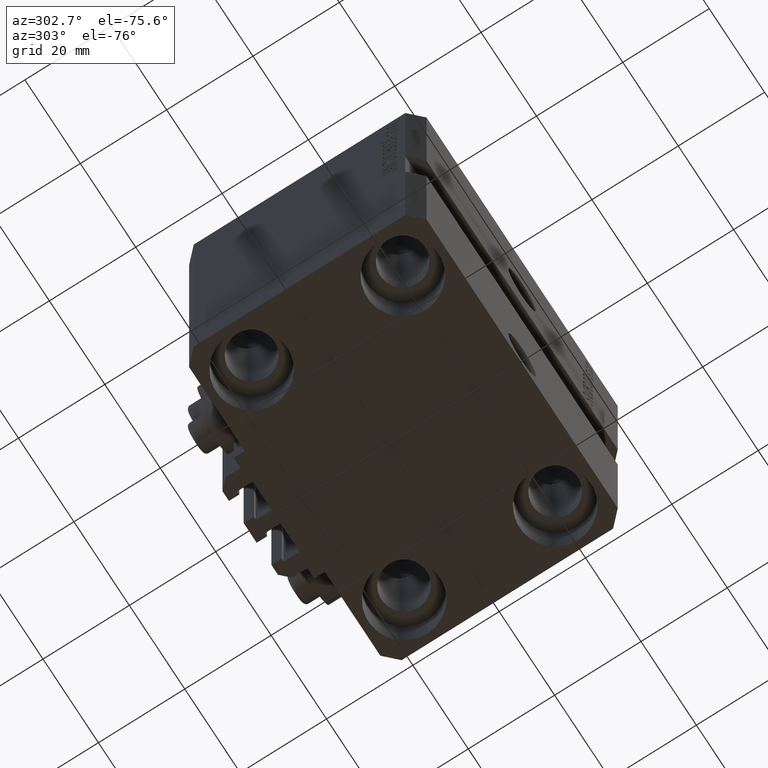
[diagram: clean part render]
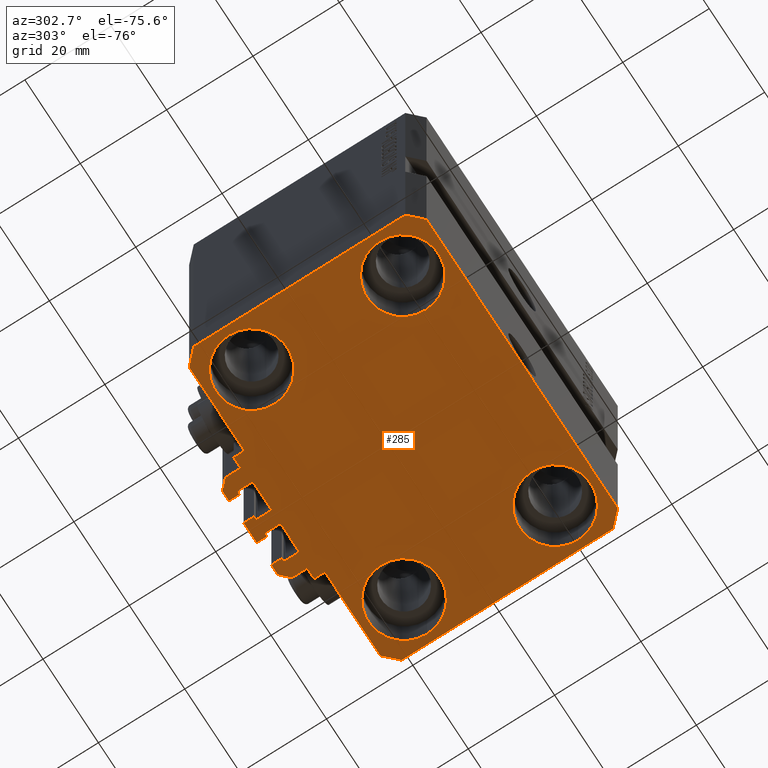
[diagram: same view with one face highlighted and labeled with its STEP entity id]
A machine part, auxiliary view. The second image highlights one B-rep face of the part: STEP entity #285.
In plain terms, the highlighted planar face has unit normal (0, 0, 1).
Its self-contained STEP definition (entity closure, byte-faithful):
#159 = VECTOR ( 'NONE', #4921, 1000.000000000000000 ) ;
#175 = DIRECTION ( 'NONE',  ( -1.000000000000000000, 0.000000000000000000, 0.000000000000000000 ) ) ;
#285 = ADVANCED_FACE ( 'NONE', ( #12888, #2219, #27323, #16678, #45538 ), #13129, .F. ) ;
#333 = CARTESIAN_POINT ( 'NONE',  ( -1.800000000000000933, 29.69999999999999929, -80.00000000000000000 ) ) ;
#613 = VERTEX_POINT ( 'NONE', #34368 ) ;
#671 = CARTESIAN_POINT ( 'NONE',  ( 1.800000000000000933, 33.10000000000001563, -80.00000000000000000 ) ) ;
#764 = CIRCLE ( 'NONE', #27239, 0.1999999999999987899 ) ;
#848 = VERTEX_POINT ( 'NONE', #32916 ) ;
#877 = AXIS2_PLACEMENT_3D ( 'NONE', #5553, #21393, #18312 ) ;
#879 = LINE ( 'NONE', #33315, #42372 ) ;
#890 = LINE ( 'NONE', #15346, #2804 ) ;
#893 = EDGE_CURVE ( 'NONE', #21298, #22198, #42517, .T. ) ;
#967 = ORIENTED_EDGE ( 'NONE', *, *, #17798, .T. ) ;
#998 = CARTESIAN_POINT ( 'NONE',  ( -34.49999999999998579, -27.49999999999999645, -80.00000000000000000 ) ) ;
#1208 = EDGE_CURVE ( 'NONE', #18368, #43558, #6184, .T. ) ;
#1325 = AXIS2_PLACEMENT_3D ( 'NONE', #10577, #39214, #14615 ) ;
#1399 = CARTESIAN_POINT ( 'NONE',  ( -12.20000000000000107, 29.99999999999998934, -80.00000000000000000 ) ) ;
#1439 = VERTEX_POINT ( 'NONE', #6423 ) ;
#1496 = CARTESIAN_POINT ( 'NONE',  ( -8.199999999999997513, 33.09999999999998721, -80.00000000000000000 ) ) ;
#1523 = DIRECTION ( 'NONE',  ( 1.000000000000000000, 0.000000000000000000, 0.000000000000000000 ) ) ;
#1546 = AXIS2_PLACEMENT_3D ( 'NONE', #2447, #31344, #31576 ) ;
#1581 = EDGE_LOOP ( 'NONE', ( #29539, #3141, #26814, #16639, #6057, #3027, #19251, #30763, #37242, #46337, #42886, #16101, #41898, #43734, #43979, #19558, #32385, #43586, #16092, #6213, #33461, #42872, #10555, #967, #9056, #21238, #10751, #8376, #39261, #31769, #30840, #27358, #9219, #22347, #37714, #32306, #44666, #36850, #8428, #10570, #27372, #43982, #24781, #5604 ) ) ;
#1786 = CARTESIAN_POINT ( 'NONE',  ( -27.50000000000000355, 17.50000000000000000, -80.00000000000000000 ) ) ;
#1861 = CARTESIAN_POINT ( 'NONE',  ( 2.349999999999999645, 33.10000000000000853, -80.00000000000000000 ) ) ;
#1917 = VECTOR ( 'NONE', #4199, 1000.000000000000000 ) ;
#1957 = VERTEX_POINT ( 'NONE', #22678 ) ;
#2210 = DIRECTION ( 'NONE',  ( 1.000000000000000000, 0.000000000000000000, 0.000000000000000000 ) ) ;
#2219 = FACE_BOUND ( 'NONE', #28346, .T. ) ;
#2248 = EDGE_CURVE ( 'NONE', #35632, #38033, #8217, .T. ) ;
#2403 = CARTESIAN_POINT ( 'NONE',  ( -1.800000000000000933, 29.50000000000000355, -80.00000000000000000 ) ) ;
#2447 = CARTESIAN_POINT ( 'NONE',  ( 8.200000000000001066, 32.90000000000001990, -80.00000000000000000 ) ) ;
#2515 = AXIS2_PLACEMENT_3D ( 'NONE', #29632, #11654, #18974 ) ;
#2565 = LINE ( 'NONE', #9911, #23383 ) ;
#2775 = CARTESIAN_POINT ( 'NONE',  ( 8.199999999999999289, 29.70000000000000284, -80.00000000000000000 ) ) ;
#2804 = VECTOR ( 'NONE', #22440, 1000.000000000000227 ) ;
#2832 = EDGE_CURVE ( 'NONE', #30185, #6379, #4540, .T. ) ;
#2842 = DIRECTION ( 'NONE',  ( -0.7071067811865356934, 0.7071067811865594521, 0.000000000000000000 ) ) ;
#2972 = EDGE_CURVE ( 'NONE', #613, #38033, #16623, .T. ) ;
#3027 = ORIENTED_EDGE ( 'NONE', *, *, #44273, .F. ) ;
#3141 = ORIENTED_EDGE ( 'NONE', *, *, #28836, .F. ) ;
#3343 = LINE ( 'NONE', #17794, #23096 ) ;
#3621 = DIRECTION ( 'NONE',  ( 1.000000000000000000, 0.000000000000000000, -0.000000000000000000 ) ) ;
#3622 = CARTESIAN_POINT ( 'NONE',  ( 8.399999999999998579, 32.90000000000001990, -80.00000000000000000 ) ) ;
#3760 = VERTEX_POINT ( 'NONE', #2403 ) ;
#3763 = EDGE_CURVE ( 'NONE', #43953, #28102, #44786, .T. ) ;
#4073 = CIRCLE ( 'NONE', #19230, 8.250000000000000000 ) ;
#4199 = DIRECTION ( 'NONE',  ( -1.000000000000000000, -1.084202172485504828E-15, 0.000000000000000000 ) ) ;
#4540 = LINE ( 'NONE', #25630, #20473 ) ;
#4545 = VECTOR ( 'NONE', #15849, 1000.000000000000000 ) ;
#4699 = CARTESIAN_POINT ( 'NONE',  ( 12.00000000000000178, 30.20000000000002061, -80.00000000000000000 ) ) ;
#4778 = EDGE_CURVE ( 'NONE', #11680, #29954, #18285, .T. ) ;
#4844 = CARTESIAN_POINT ( 'NONE',  ( -27.50000000000000355, -17.50000000000000000, -80.00000000000000000 ) ) ;
#4921 = DIRECTION ( 'NONE',  ( -6.776263578034378061E-17, -1.000000000000000000, 0.000000000000000000 ) ) ;
#4971 = CARTESIAN_POINT ( 'NONE',  ( -34.49999999999998579, -27.49999999999999645, -80.00000000000000000 ) ) ;
#4983 = VERTEX_POINT ( 'NONE', #3622 ) ;
#5553 = CARTESIAN_POINT ( 'NONE',  ( 27.50000000000000355, -17.50000000000000000, -80.00000000000000000 ) ) ;
#5592 = AXIS2_PLACEMENT_3D ( 'NONE', #20206, #34650, #2210 ) ;
#5594 = CIRCLE ( 'NONE', #22232, 8.250000000000000000 ) ;
#5604 = ORIENTED_EDGE ( 'NONE', *, *, #3763, .F. ) ;
#5627 = AXIS2_PLACEMENT_3D ( 'NONE', #1786, #11765, #37534 ) ;
#6057 = ORIENTED_EDGE ( 'NONE', *, *, #893, .F. ) ;
#6184 = CIRCLE ( 'NONE', #877, 8.250000000000000000 ) ;
#6213 = ORIENTED_EDGE ( 'NONE', *, *, #36257, .T. ) ;
#6379 = VERTEX_POINT ( 'NONE', #23433 ) ;
#6423 = CARTESIAN_POINT ( 'NONE',  ( -7.650000000000000355, 35.50000000000000000, -80.00000000000000000 ) ) ;
#6467 = DIRECTION ( 'NONE',  ( 0.000000000000000000, 0.000000000000000000, 1.000000000000000000 ) ) ;
#6543 = EDGE_CURVE ( 'NONE', #21051, #26344, #40676, .T. ) ;
#6568 = VERTEX_POINT ( 'NONE', #37349 ) ;
#6625 = LINE ( 'NONE', #24627, #10666 ) ;
#6709 = CARTESIAN_POINT ( 'NONE',  ( 2.349999999999999645, 35.50000000000001421, -80.00000000000000000 ) ) ;
#6906 = VERTEX_POINT ( 'NONE', #37527 ) ;
#7006 = LINE ( 'NONE', #11050, #25034 ) ;
#7279 = LINE ( 'NONE', #36374, #8913 ) ;
#7405 = CARTESIAN_POINT ( 'NONE',  ( 1.800000000000000933, 29.69999999999999929, -80.00000000000000000 ) ) ;
#7452 = EDGE_CURVE ( 'NONE', #613, #11613, #34974, .T. ) ;
#7677 = CARTESIAN_POINT ( 'NONE',  ( 34.50000000000056843, 27.50000000000000000, -80.00000000000000000 ) ) ;
#7702 = EDGE_CURVE ( 'NONE', #29954, #11680, #13819, .T. ) ;
#7708 = LINE ( 'NONE', #14836, #15679 ) ;
#7950 = DIRECTION ( 'NONE',  ( -0.000000000000000000, -0.000000000000000000, 1.000000000000000000 ) ) ;
#7982 = AXIS2_PLACEMENT_3D ( 'NONE', #22411, #33297, #36842 ) ;
#8217 = LINE ( 'NONE', #29530, #31899 ) ;
#8376 = ORIENTED_EDGE ( 'NONE', *, *, #2248, .F. ) ;
#8428 = ORIENTED_EDGE ( 'NONE', *, *, #39424, .F. ) ;
#8448 = CARTESIAN_POINT ( 'NONE',  ( -1.599999999999997868, 32.90000000000001279, -80.00000000000000000 ) ) ;
#8628 = DIRECTION ( 'NONE',  ( -0.000000000000000000, -0.000000000000000000, 1.000000000000000000 ) ) ;
#8806 = CARTESIAN_POINT ( 'NONE',  ( 14.49999999999999645, 27.50000000000000355, -80.00000000000000000 ) ) ;
#8913 = VECTOR ( 'NONE', #36608, 1000.000000000000000 ) ;
#8953 = LINE ( 'NONE', #15840, #46733 ) ;
#9056 = ORIENTED_EDGE ( 'NONE', *, *, #43467, .F. ) ;
#9061 = EDGE_CURVE ( 'NONE', #18115, #43953, #11211, .T. ) ;
#9219 = ORIENTED_EDGE ( 'NONE', *, *, #13356, .F. ) ;
#9511 = DIRECTION ( 'NONE',  ( 1.000000000000000000, 0.000000000000000000, 0.000000000000000000 ) ) ;
#9765 = DIRECTION ( 'NONE',  ( 0.7071067811865483499, -0.7071067811865466846, 0.000000000000000000 ) ) ;
#9911 = CARTESIAN_POINT ( 'NONE',  ( -8.399999999999996803, 29.69999999999999929, -80.00000000000000000 ) ) ;
#10093 = DIRECTION ( 'NONE',  ( 1.000000000000000000, 0.000000000000000000, 0.000000000000000000 ) ) ;
#10134 = EDGE_CURVE ( 'NONE', #13635, #1957, #4073, .T. ) ;
#10290 = DIRECTION ( 'NONE',  ( 0.000000000000000000, 0.000000000000000000, 1.000000000000000000 ) ) ;
#10527 = DIRECTION ( 'NONE',  ( -0.7071067811865474617, 0.7071067811865474617, 0.000000000000000000 ) ) ;
#10555 = ORIENTED_EDGE ( 'NONE', *, *, #6543, .F. ) ;
#10570 = ORIENTED_EDGE ( 'NONE', *, *, #45362, .F. ) ;
#10577 = CARTESIAN_POINT ( 'NONE',  ( -27.50000000000000355, -17.50000000000000000, -80.00000000000000000 ) ) ;
#10649 = CARTESIAN_POINT ( 'NONE',  ( 14.49999999999999645, 30.00000000000002487, -80.00000000000000000 ) ) ;
#10650 = EDGE_CURVE ( 'NONE', #45320, #39064, #5594, .T. ) ;
#10666 = VECTOR ( 'NONE', #2842, 1000.000000000000114 ) ;
#10751 = ORIENTED_EDGE ( 'NONE', *, *, #2972, .T. ) ;
#10926 = VERTEX_POINT ( 'NONE', #36755 ) ;
#11008 = CARTESIAN_POINT ( 'NONE',  ( 37.50000000000051870, 24.49999999999995381, -80.00000000000000000 ) ) ;
#11047 = VERTEX_POINT ( 'NONE', #13314 ) ;
#11050 = CARTESIAN_POINT ( 'NONE',  ( -12.00000000000000000, 33.49999999999998579, -80.00000000000000000 ) ) ;
#11070 = DIRECTION ( 'NONE',  ( 1.000000000000000000, 0.000000000000000000, 0.000000000000000000 ) ) ;
#11108 = LINE ( 'NONE', #25767, #31428 ) ;
#11151 = VERTEX_POINT ( 'NONE', #36698 ) ;
#11211 = LINE ( 'NONE', #25640, #19196 ) ;
#11262 = VECTOR ( 'NONE', #43138, 1000.000000000000000 ) ;
#11326 = VECTOR ( 'NONE', #29414, 1000.000000000000000 ) ;
#11356 = VECTOR ( 'NONE', #18963, 1000.000000000000000 ) ;
#11613 = VERTEX_POINT ( 'NONE', #15586 ) ;
#11654 = DIRECTION ( 'NONE',  ( 0.000000000000000000, 0.000000000000000000, 1.000000000000000000 ) ) ;
#11680 = VERTEX_POINT ( 'NONE', #42293 ) ;
#11765 = DIRECTION ( 'NONE',  ( -0.000000000000000000, -0.000000000000000000, 1.000000000000000000 ) ) ;
#11935 = CARTESIAN_POINT ( 'NONE',  ( -34.49999999999999289, 27.50000000000000000, -80.00000000000000000 ) ) ;
#12017 = LINE ( 'NONE', #40887, #1917 ) ;
#12037 = LINE ( 'NONE', #12505, #23580 ) ;
#12076 = VERTEX_POINT ( 'NONE', #40504 ) ;
#12505 = CARTESIAN_POINT ( 'NONE',  ( 37.49999999999999289, -24.50000000000000000, -80.00000000000000000 ) ) ;
#12537 = CARTESIAN_POINT ( 'NONE',  ( 19.25000000000000000, 17.50000000000001066, -80.00000000000000000 ) ) ;
#12824 = CIRCLE ( 'NONE', #44570, 0.2000000000000016209 ) ;
#12888 = FACE_BOUND ( 'NONE', #20935, .T. ) ;
#12964 = VERTEX_POINT ( 'NONE', #11935 ) ;
#12991 = DIRECTION ( 'NONE',  ( -1.000000000000000000, 0.000000000000000000, 0.000000000000000000 ) ) ;
#13129 = PLANE ( 'NONE',  #24266 ) ;
#13314 = CARTESIAN_POINT ( 'NONE',  ( -14.50000000000000000, 29.99999999999999289, -80.00000000000000000 ) ) ;
#13356 = EDGE_CURVE ( 'NONE', #11151, #6906, #12017, .T. ) ;
#13509 = DIRECTION ( 'NONE',  ( 1.000000000000000000, 0.000000000000000000, 0.000000000000000000 ) ) ;
#13635 = VERTEX_POINT ( 'NONE', #15514 ) ;
#13819 = CIRCLE ( 'NONE', #15348, 8.249999999999992895 ) ;
#13874 = LINE ( 'NONE', #28293, #15545 ) ;
#13885 = VERTEX_POINT ( 'NONE', #34546 ) ;
#14075 = VERTEX_POINT ( 'NONE', #32156 ) ;
#14151 = EDGE_CURVE ( 'NONE', #14075, #40453, #890, .T. ) ;
#14170 = DIRECTION ( 'NONE',  ( -1.084202172485505223E-15, 1.000000000000000000, 0.000000000000000000 ) ) ;
#14251 = DIRECTION ( 'NONE',  ( 1.000000000000000000, 1.261617073437673039E-14, 0.000000000000000000 ) ) ;
#14338 = LINE ( 'NONE', #28765, #35199 ) ;
#14516 = VECTOR ( 'NONE', #10093, 1000.000000000000000 ) ;
#14615 = DIRECTION ( 'NONE',  ( 1.000000000000000000, 0.000000000000000000, 0.000000000000000000 ) ) ;
#14836 = CARTESIAN_POINT ( 'NONE',  ( -8.199999999999997513, 33.09999999999998721, -80.00000000000000000 ) ) ;
#15300 = DIRECTION ( 'NONE',  ( 1.000000000000000000, 1.261617073437685503E-14, 0.000000000000000000 ) ) ;
#15305 = EDGE_CURVE ( 'NONE', #32029, #32620, #7708, .T. ) ;
#15346 = CARTESIAN_POINT ( 'NONE',  ( -10.00000000000000000, 35.50000000000000000, -80.00000000000000000 ) ) ;
#15348 = AXIS2_PLACEMENT_3D ( 'NONE', #45126, #16735, #15801 ) ;
#15514 = CARTESIAN_POINT ( 'NONE',  ( -35.75000000000000711, 17.50000000000000000, -80.00000000000000000 ) ) ;
#15545 = VECTOR ( 'NONE', #25679, 1000.000000000000000 ) ;
#15550 = CIRCLE ( 'NONE', #45775, 0.1999999999999994282 ) ;
#15586 = CARTESIAN_POINT ( 'NONE',  ( -2.350000000000003197, 33.10000000000000853, -80.00000000000000000 ) ) ;
#15679 = VECTOR ( 'NONE', #15300, 1000.000000000000000 ) ;
#15801 = DIRECTION ( 'NONE',  ( 1.000000000000000000, 0.000000000000000000, 0.000000000000000000 ) ) ;
#15840 = CARTESIAN_POINT ( 'NONE',  ( 34.50000000000056843, 27.50000000000000000, -80.00000000000000000 ) ) ;
#15849 = DIRECTION ( 'NONE',  ( -1.000000000000000000, 1.508455196501571429E-15, 0.000000000000000000 ) ) ;
#16092 = ORIENTED_EDGE ( 'NONE', *, *, #20840, .F. ) ;
#16101 = ORIENTED_EDGE ( 'NONE', *, *, #45125, .T. ) ;
#16613 = CARTESIAN_POINT ( 'NONE',  ( 34.49999999999999289, -27.49999999999999645, -80.00000000000000000 ) ) ;
#16623 = LINE ( 'NONE', #30583, #25779 ) ;
#16639 = ORIENTED_EDGE ( 'NONE', *, *, #24102, .F. ) ;
#16678 = FACE_BOUND ( 'NONE', #19506, .T. ) ;
#16715 = EDGE_CURVE ( 'NONE', #11151, #10926, #29307, .T. ) ;
#16735 = DIRECTION ( 'NONE',  ( -0.000000000000000000, -0.000000000000000000, 1.000000000000000000 ) ) ;
#16784 = EDGE_CURVE ( 'NONE', #39064, #45320, #38365, .T. ) ;
#16958 = VECTOR ( 'NONE', #32825, 1000.000000000000000 ) ;
#16994 = CARTESIAN_POINT ( 'NONE',  ( -2.350000000000003642, 35.50000000000001421, -80.00000000000000000 ) ) ;
#16997 = DIRECTION ( 'NONE',  ( 1.000000000000000000, 0.000000000000000000, 0.000000000000000000 ) ) ;
#17019 = CARTESIAN_POINT ( 'NONE',  ( 1.600000000000000533, 29.69999999999999929, -80.00000000000000000 ) ) ;
#17291 = LINE ( 'NONE', #38830, #23691 ) ;
#17364 = DIRECTION ( 'NONE',  ( 1.000000000000000000, 0.000000000000000000, 0.000000000000000000 ) ) ;
#17565 = EDGE_CURVE ( 'NONE', #19576, #12964, #8953, .T. ) ;
#17580 = CARTESIAN_POINT ( 'NONE',  ( 12.20000000000000107, 30.00000000000002487, -80.00000000000000000 ) ) ;
#17706 = CIRCLE ( 'NONE', #18474, 0.1999999999999987899 ) ;
#17718 = EDGE_CURVE ( 'NONE', #848, #27625, #7279, .T. ) ;
#17794 = CARTESIAN_POINT ( 'NONE',  ( -2.350000000000003197, 33.10000000000000853, -80.00000000000000000 ) ) ;
#17798 = EDGE_CURVE ( 'NONE', #21051, #20614, #42172, .T. ) ;
#17877 = LINE ( 'NONE', #32536, #43526 ) ;
#17949 = CARTESIAN_POINT ( 'NONE',  ( 7.649999999999998579, 35.50000000000001421, -80.00000000000000000 ) ) ;
#18115 = VERTEX_POINT ( 'NONE', #7677 ) ;
#18128 = ORIENTED_EDGE ( 'NONE', *, *, #10134, .T. ) ;
#18285 = CIRCLE ( 'NONE', #31156, 8.249999999999992895 ) ;
#18312 = DIRECTION ( 'NONE',  ( 1.000000000000000000, 0.000000000000000000, 0.000000000000000000 ) ) ;
#18326 = CARTESIAN_POINT ( 'NONE',  ( 14.49999999999999645, 27.50000000000000355, -80.00000000000000000 ) ) ;
#18368 = VERTEX_POINT ( 'NONE', #20199 ) ;
#18384 = LINE ( 'NONE', #21930, #16958 ) ;
#18474 = AXIS2_PLACEMENT_3D ( 'NONE', #39651, #33025, #46752 ) ;
#18509 = CARTESIAN_POINT ( 'NONE',  ( 1.800000000000000933, 32.90000000000001279, -80.00000000000000000 ) ) ;
#18671 = DIRECTION ( 'NONE',  ( 1.000000000000000000, -1.261617073437681085E-14, 0.000000000000000000 ) ) ;
#18963 = DIRECTION ( 'NONE',  ( -5.421010862427496532E-16, -1.000000000000000000, 0.000000000000000000 ) ) ;
#18968 = ORIENTED_EDGE ( 'NONE', *, *, #40208, .T. ) ;
#18974 = DIRECTION ( 'NONE',  ( 1.000000000000000000, 0.000000000000000000, 0.000000000000000000 ) ) ;
#19196 = VECTOR ( 'NONE', #28965, 1000.000000000000000 ) ;
#19230 = AXIS2_PLACEMENT_3D ( 'NONE', #19543, #7950, #43933 ) ;
#19251 = ORIENTED_EDGE ( 'NONE', *, *, #17718, .F. ) ;
#19506 = EDGE_LOOP ( 'NONE', ( #18128, #18968 ) ) ;
#19543 = CARTESIAN_POINT ( 'NONE',  ( -27.50000000000000355, 17.50000000000000000, -80.00000000000000000 ) ) ;
#19558 = ORIENTED_EDGE ( 'NONE', *, *, #43359, .F. ) ;
#19576 = VERTEX_POINT ( 'NONE', #37319 ) ;
#19621 = LINE ( 'NONE', #1399, #4545 ) ;
#19891 = DIRECTION ( 'NONE',  ( 0.000000000000000000, 0.000000000000000000, 1.000000000000000000 ) ) ;
#20189 = EDGE_CURVE ( 'NONE', #12964, #848, #28709, .T. ) ;
#20199 = CARTESIAN_POINT ( 'NONE',  ( 19.25000000000000000, -17.50000000000000000, -80.00000000000000000 ) ) ;
#20206 = CARTESIAN_POINT ( 'NONE',  ( 27.50000000000000355, -17.50000000000000000, -80.00000000000000000 ) ) ;
#20211 = DIRECTION ( 'NONE',  ( 0.7071067811865474617, 0.7071067811865474617, 0.000000000000000000 ) ) ;
#20473 = VECTOR ( 'NONE', #32736, 1000.000000000000000 ) ;
#20614 = VERTEX_POINT ( 'NONE', #32906 ) ;
#20687 = CARTESIAN_POINT ( 'NONE',  ( 0.000000000000000000, 0.000000000000000000, -80.00000000000000000 ) ) ;
#20840 = EDGE_CURVE ( 'NONE', #6568, #26066, #2565, .T. ) ;
#20935 = EDGE_LOOP ( 'NONE', ( #21257, #25373 ) ) ;
#21051 = VERTEX_POINT ( 'NONE', #8448 ) ;
#21150 = EDGE_CURVE ( 'NONE', #46426, #6906, #12824, .T. ) ;
#21238 = ORIENTED_EDGE ( 'NONE', *, *, #7452, .F. ) ;
#21257 = ORIENTED_EDGE ( 'NONE', *, *, #10650, .T. ) ;
#21298 = VERTEX_POINT ( 'NONE', #998 ) ;
#21315 = EDGE_CURVE ( 'NONE', #3760, #13885, #40538, .T. ) ;
#21393 = DIRECTION ( 'NONE',  ( -0.000000000000000000, -0.000000000000000000, 1.000000000000000000 ) ) ;
#21457 = DIRECTION ( 'NONE',  ( 0.000000000000000000, -1.000000000000000000, 0.000000000000000000 ) ) ;
#21511 = CIRCLE ( 'NONE', #26041, 0.2000000000000033418 ) ;
#21540 = DIRECTION ( 'NONE',  ( -1.000000000000000000, 0.000000000000000000, 0.000000000000000000 ) ) ;
#21930 = CARTESIAN_POINT ( 'NONE',  ( 9.999999999999998224, 35.50000000000001421, -80.00000000000000000 ) ) ;
#22176 = CARTESIAN_POINT ( 'NONE',  ( -1.800000000000000933, 32.90000000000001279, -80.00000000000000000 ) ) ;
#22198 = VERTEX_POINT ( 'NONE', #16613 ) ;
#22232 = AXIS2_PLACEMENT_3D ( 'NONE', #4844, #8628, #1523 ) ;
#22254 = CIRCLE ( 'NONE', #5627, 8.250000000000000000 ) ;
#22277 = CARTESIAN_POINT ( 'NONE',  ( 35.75000000000000711, -17.50000000000000000, -80.00000000000000000 ) ) ;
#22347 = ORIENTED_EDGE ( 'NONE', *, *, #16715, .T. ) ;
#22411 = CARTESIAN_POINT ( 'NONE',  ( -12.20000000000000107, 30.19999999999999218, -80.00000000000000000 ) ) ;
#22440 = DIRECTION ( 'NONE',  ( -0.7071067811865460184, -0.7071067811865490160, 0.000000000000000000 ) ) ;
#22504 = EDGE_CURVE ( 'NONE', #43398, #11047, #19621, .T. ) ;
#22678 = CARTESIAN_POINT ( 'NONE',  ( -19.25000000000000355, 17.50000000000000000, -80.00000000000000000 ) ) ;
#23096 = VECTOR ( 'NONE', #14251, 1000.000000000000000 ) ;
#23383 = VECTOR ( 'NONE', #14170, 1000.000000000000000 ) ;
#23433 = CARTESIAN_POINT ( 'NONE',  ( 8.200000000000001066, 33.10000000000000853, -80.00000000000000000 ) ) ;
#23462 = VERTEX_POINT ( 'NONE', #17949 ) ;
#23504 = CARTESIAN_POINT ( 'NONE',  ( -37.49999999999999289, -24.50000000000000000, -80.00000000000000000 ) ) ;
#23580 = VECTOR ( 'NONE', #41599, 1000.000000000000000 ) ;
#23592 = EDGE_CURVE ( 'NONE', #1439, #14075, #879, .T. ) ;
#23645 = LINE ( 'NONE', #17019, #25060 ) ;
#23691 = VECTOR ( 'NONE', #46622, 1000.000000000000000 ) ;
#23733 = CARTESIAN_POINT ( 'NONE',  ( 1.599999999999999645, 29.69999999999999929, -80.00000000000000000 ) ) ;
#23861 = DIRECTION ( 'NONE',  ( 1.807003620809174632E-16, -1.000000000000000000, 0.000000000000000000 ) ) ;
#24050 = EDGE_CURVE ( 'NONE', #4983, #6379, #43894, .T. ) ;
#24091 = DIRECTION ( 'NONE',  ( 0.000000000000000000, 0.000000000000000000, 1.000000000000000000 ) ) ;
#24102 = EDGE_CURVE ( 'NONE', #22198, #24765, #38202, .T. ) ;
#24266 = AXIS2_PLACEMENT_3D ( 'NONE', #20687, #31801, #3621 ) ;
#24627 = CARTESIAN_POINT ( 'NONE',  ( 37.50000000000051870, 24.49999999999995381, -80.00000000000000000 ) ) ;
#24765 = VERTEX_POINT ( 'NONE', #38332 ) ;
#24781 = ORIENTED_EDGE ( 'NONE', *, *, #42112, .F. ) ;
#25034 = VECTOR ( 'NONE', #21457, 1000.000000000000000 ) ;
#25060 = VECTOR ( 'NONE', #34296, 1000.000000000000000 ) ;
#25155 = CARTESIAN_POINT ( 'NONE',  ( -34.49999999999999289, 27.50000000000000000, -80.00000000000000000 ) ) ;
#25373 = ORIENTED_EDGE ( 'NONE', *, *, #16784, .T. ) ;
#25420 = EDGE_CURVE ( 'NONE', #40453, #43047, #7006, .T. ) ;
#25630 = CARTESIAN_POINT ( 'NONE',  ( 7.649999999999998579, 33.10000000000001563, -80.00000000000000000 ) ) ;
#25640 = CARTESIAN_POINT ( 'NONE',  ( 34.50000000000056843, 27.50000000000000000, -80.00000000000000000 ) ) ;
#25679 = DIRECTION ( 'NONE',  ( 0.000000000000000000, -1.000000000000000000, 0.000000000000000000 ) ) ;
#25767 = CARTESIAN_POINT ( 'NONE',  ( 1.800000000000000933, 33.10000000000001563, -80.00000000000000000 ) ) ;
#25779 = VECTOR ( 'NONE', #9511, 1000.000000000000000 ) ;
#26018 = LINE ( 'NONE', #4699, #27305 ) ;
#26020 = CIRCLE ( 'NONE', #5592, 8.250000000000000000 ) ;
#26041 = AXIS2_PLACEMENT_3D ( 'NONE', #18509, #32949, #13509 ) ;
#26047 = EDGE_CURVE ( 'NONE', #4983, #10926, #41205, .T. ) ;
#26066 = VERTEX_POINT ( 'NONE', #40971 ) ;
#26190 = EDGE_CURVE ( 'NONE', #38435, #26903, #764, .T. ) ;
#26344 = VERTEX_POINT ( 'NONE', #35970 ) ;
#26483 = CARTESIAN_POINT ( 'NONE',  ( 14.49999999999999645, 30.00000000000002487, -80.00000000000000000 ) ) ;
#26814 = ORIENTED_EDGE ( 'NONE', *, *, #30877, .F. ) ;
#26903 = VERTEX_POINT ( 'NONE', #17580 ) ;
#27007 = DIRECTION ( 'NONE',  ( 1.000000000000000000, 0.000000000000000000, 0.000000000000000000 ) ) ;
#27038 = AXIS2_PLACEMENT_3D ( 'NONE', #2775, #24091, #16997 ) ;
#27075 = AXIS2_PLACEMENT_3D ( 'NONE', #22176, #33302, #11070 ) ;
#27239 = AXIS2_PLACEMENT_3D ( 'NONE', #42359, #19891, #27007 ) ;
#27305 = VECTOR ( 'NONE', #40219, 1000.000000000000000 ) ;
#27323 = FACE_BOUND ( 'NONE', #29283, .T. ) ;
#27358 = ORIENTED_EDGE ( 'NONE', *, *, #21150, .T. ) ;
#27372 = ORIENTED_EDGE ( 'NONE', *, *, #28017, .F. ) ;
#27625 = VERTEX_POINT ( 'NONE', #29447 ) ;
#28017 = EDGE_CURVE ( 'NONE', #38435, #40785, #26018, .T. ) ;
#28102 = VERTEX_POINT ( 'NONE', #26483 ) ;
#28293 = CARTESIAN_POINT ( 'NONE',  ( 7.649999999999998579, 35.50000000000001421, -80.00000000000000000 ) ) ;
#28346 = EDGE_LOOP ( 'NONE', ( #41199, #44768 ) ) ;
#28709 = LINE ( 'NONE', #25155, #11262 ) ;
#28765 = CARTESIAN_POINT ( 'NONE',  ( -7.650000000000000355, 33.09999999999999432, -80.00000000000000000 ) ) ;
#28836 = EDGE_CURVE ( 'NONE', #40470, #18115, #6625, .T. ) ;
#28965 = DIRECTION ( 'NONE',  ( -1.000000000000000000, 0.000000000000000000, 0.000000000000000000 ) ) ;
#29283 = EDGE_LOOP ( 'NONE', ( #37020, #41211 ) ) ;
#29301 = DIRECTION ( 'NONE',  ( 0.000000000000000000, 1.000000000000000000, 0.000000000000000000 ) ) ;
#29307 = CIRCLE ( 'NONE', #27038, 0.1999999999999987899 ) ;
#29414 = DIRECTION ( 'NONE',  ( -1.000000000000000000, 0.000000000000000000, 0.000000000000000000 ) ) ;
#29447 = CARTESIAN_POINT ( 'NONE',  ( -37.49999999999999289, -24.50000000000000000, -80.00000000000000000 ) ) ;
#29530 = CARTESIAN_POINT ( 'NONE',  ( 2.349999999999999645, 33.10000000000000853, -80.00000000000000000 ) ) ;
#29539 = ORIENTED_EDGE ( 'NONE', *, *, #9061, .F. ) ;
#29632 = CARTESIAN_POINT ( 'NONE',  ( -8.199999999999997513, 32.89999999999999147, -80.00000000000000000 ) ) ;
#29868 = EDGE_CURVE ( 'NONE', #46426, #12076, #23645, .T. ) ;
#29954 = VERTEX_POINT ( 'NONE', #12537 ) ;
#30185 = VERTEX_POINT ( 'NONE', #32227 ) ;
#30583 = CARTESIAN_POINT ( 'NONE',  ( -2.350000000000003642, 35.50000000000001421, -80.00000000000000000 ) ) ;
#30747 = VERTEX_POINT ( 'NONE', #671 ) ;
#30763 = ORIENTED_EDGE ( 'NONE', *, *, #20189, .F. ) ;
#30840 = ORIENTED_EDGE ( 'NONE', *, *, #29868, .F. ) ;
#30877 = EDGE_CURVE ( 'NONE', #24765, #40470, #12037, .T. ) ;
#31156 = AXIS2_PLACEMENT_3D ( 'NONE', #37731, #40364, #44841 ) ;
#31344 = DIRECTION ( 'NONE',  ( 0.000000000000000000, 0.000000000000000000, 1.000000000000000000 ) ) ;
#31428 = VECTOR ( 'NONE', #18671, 1000.000000000000000 ) ;
#31576 = DIRECTION ( 'NONE',  ( 1.000000000000000000, 0.000000000000000000, 0.000000000000000000 ) ) ;
#31769 = ORIENTED_EDGE ( 'NONE', *, *, #40002, .T. ) ;
#31801 = DIRECTION ( 'NONE',  ( 0.000000000000000000, 0.000000000000000000, 1.000000000000000000 ) ) ;
#31899 = VECTOR ( 'NONE', #29301, 1000.000000000000000 ) ;
#32029 = VERTEX_POINT ( 'NONE', #1496 ) ;
#32072 = CARTESIAN_POINT ( 'NONE',  ( -7.650000000000000355, 33.09999999999999432, -80.00000000000000000 ) ) ;
#32156 = CARTESIAN_POINT ( 'NONE',  ( -10.00000000000000000, 35.50000000000000000, -80.00000000000000000 ) ) ;
#32227 = CARTESIAN_POINT ( 'NONE',  ( 7.649999999999998579, 33.10000000000001563, -80.00000000000000000 ) ) ;
#32306 = ORIENTED_EDGE ( 'NONE', *, *, #24050, .T. ) ;
#32385 = ORIENTED_EDGE ( 'NONE', *, *, #15305, .F. ) ;
#32523 = CARTESIAN_POINT ( 'NONE',  ( 9.999999999999998224, 35.50000000000001421, -80.00000000000000000 ) ) ;
#32536 = CARTESIAN_POINT ( 'NONE',  ( 12.00000000000000000, 33.50000000000001421, -80.00000000000000000 ) ) ;
#32620 = VERTEX_POINT ( 'NONE', #32072 ) ;
#32736 = DIRECTION ( 'NONE',  ( 1.000000000000000000, -1.261617073437673828E-14, 0.000000000000000000 ) ) ;
#32755 = VERTEX_POINT ( 'NONE', #32523 ) ;
#32825 = DIRECTION ( 'NONE',  ( -1.000000000000000000, 0.000000000000000000, 0.000000000000000000 ) ) ;
#32906 = CARTESIAN_POINT ( 'NONE',  ( -1.800000000000000933, 33.10000000000001563, -80.00000000000000000 ) ) ;
#32916 = CARTESIAN_POINT ( 'NONE',  ( -37.49999999999999289, 24.50000000000000000, -80.00000000000000000 ) ) ;
#32949 = DIRECTION ( 'NONE',  ( 0.000000000000000000, 0.000000000000000000, 1.000000000000000000 ) ) ;
#33025 = DIRECTION ( 'NONE',  ( 0.000000000000000000, 0.000000000000000000, 1.000000000000000000 ) ) ;
#33242 = CARTESIAN_POINT ( 'NONE',  ( -35.75000000000000711, -17.50000000000000000, -80.00000000000000000 ) ) ;
#33297 = DIRECTION ( 'NONE',  ( 0.000000000000000000, 0.000000000000000000, 1.000000000000000000 ) ) ;
#33302 = DIRECTION ( 'NONE',  ( 0.000000000000000000, 0.000000000000000000, 1.000000000000000000 ) ) ;
#33315 = CARTESIAN_POINT ( 'NONE',  ( -7.650000000000000355, 35.50000000000000000, -80.00000000000000000 ) ) ;
#33461 = ORIENTED_EDGE ( 'NONE', *, *, #21315, .F. ) ;
#33676 = VECTOR ( 'NONE', #9765, 1000.000000000000000 ) ;
#34044 = EDGE_CURVE ( 'NONE', #32029, #26066, #37299, .T. ) ;
#34181 = EDGE_CURVE ( 'NONE', #11047, #19576, #17291, .T. ) ;
#34296 = DIRECTION ( 'NONE',  ( 0.000000000000000000, 1.000000000000000000, 0.000000000000000000 ) ) ;
#34368 = CARTESIAN_POINT ( 'NONE',  ( -2.350000000000003642, 35.50000000000001421, -80.00000000000000000 ) ) ;
#34546 = CARTESIAN_POINT ( 'NONE',  ( -8.199999999999997513, 29.50000000000000355, -80.00000000000000000 ) ) ;
#34608 = DIRECTION ( 'NONE',  ( 0.000000000000000000, 1.000000000000000000, 0.000000000000000000 ) ) ;
#34650 = DIRECTION ( 'NONE',  ( -0.000000000000000000, -0.000000000000000000, 1.000000000000000000 ) ) ;
#34836 = VECTOR ( 'NONE', #20211, 1000.000000000000114 ) ;
#34873 = VECTOR ( 'NONE', #34608, 1000.000000000000000 ) ;
#34974 = LINE ( 'NONE', #16994, #42534 ) ;
#35199 = VECTOR ( 'NONE', #43195, 1000.000000000000000 ) ;
#35632 = VERTEX_POINT ( 'NONE', #1861 ) ;
#35970 = CARTESIAN_POINT ( 'NONE',  ( -1.600000000000000755, 29.69999999999999929, -80.00000000000000000 ) ) ;
#36090 = DIRECTION ( 'NONE',  ( 1.000000000000000000, 0.000000000000000000, 0.000000000000000000 ) ) ;
#36257 = EDGE_CURVE ( 'NONE', #6568, #13885, #17706, .T. ) ;
#36374 = CARTESIAN_POINT ( 'NONE',  ( -37.49999999999999289, 24.50000000000000000, -80.00000000000000000 ) ) ;
#36420 = EDGE_CURVE ( 'NONE', #43558, #18368, #26020, .T. ) ;
#36550 = CARTESIAN_POINT ( 'NONE',  ( -12.00000000000000000, 33.49999999999998579, -80.00000000000000000 ) ) ;
#36608 = DIRECTION ( 'NONE',  ( 0.000000000000000000, -1.000000000000000000, 0.000000000000000000 ) ) ;
#36653 = CARTESIAN_POINT ( 'NONE',  ( -19.25000000000000355, -17.50000000000000000, -80.00000000000000000 ) ) ;
#36698 = CARTESIAN_POINT ( 'NONE',  ( 8.199999999999999289, 29.50000000000000711, -80.00000000000000000 ) ) ;
#36755 = CARTESIAN_POINT ( 'NONE',  ( 8.400000000000000355, 29.70000000000000284, -80.00000000000000000 ) ) ;
#36842 = DIRECTION ( 'NONE',  ( 1.000000000000000000, 0.000000000000000000, 0.000000000000000000 ) ) ;
#36850 = ORIENTED_EDGE ( 'NONE', *, *, #43274, .F. ) ;
#37020 = ORIENTED_EDGE ( 'NONE', *, *, #7702, .T. ) ;
#37183 = CARTESIAN_POINT ( 'NONE',  ( 8.400000000000000355, 32.90000000000001990, -80.00000000000000000 ) ) ;
#37242 = ORIENTED_EDGE ( 'NONE', *, *, #17565, .F. ) ;
#37299 = CIRCLE ( 'NONE', #2515, 0.2000000000000005107 ) ;
#37319 = CARTESIAN_POINT ( 'NONE',  ( -14.50000000000000000, 27.50000000000000355, -80.00000000000000000 ) ) ;
#37349 = CARTESIAN_POINT ( 'NONE',  ( -8.399999999999996803, 29.69999999999999929, -80.00000000000000000 ) ) ;
#37430 = VECTOR ( 'NONE', #21540, 1000.000000000000000 ) ;
#37527 = CARTESIAN_POINT ( 'NONE',  ( 1.800000000000000933, 29.50000000000000000, -80.00000000000000000 ) ) ;
#37534 = DIRECTION ( 'NONE',  ( 1.000000000000000000, 0.000000000000000000, 0.000000000000000000 ) ) ;
#37714 = ORIENTED_EDGE ( 'NONE', *, *, #26047, .F. ) ;
#37731 = CARTESIAN_POINT ( 'NONE',  ( 27.49999999999999645, 17.50000000000001066, -80.00000000000000000 ) ) ;
#38033 = VERTEX_POINT ( 'NONE', #6709 ) ;
#38202 = LINE ( 'NONE', #45774, #34836 ) ;
#38332 = CARTESIAN_POINT ( 'NONE',  ( 37.49999999999999289, -24.50000000000000000, -80.00000000000000000 ) ) ;
#38365 = CIRCLE ( 'NONE', #1325, 8.250000000000000000 ) ;
#38435 = VERTEX_POINT ( 'NONE', #46078 ) ;
#38830 = CARTESIAN_POINT ( 'NONE',  ( -14.50000000000000000, 29.99999999999999289, -80.00000000000000000 ) ) ;
#38957 = EDGE_CURVE ( 'NONE', #30747, #35632, #11108, .T. ) ;
#39064 = VERTEX_POINT ( 'NONE', #36653 ) ;
#39214 = DIRECTION ( 'NONE',  ( -0.000000000000000000, -0.000000000000000000, 1.000000000000000000 ) ) ;
#39261 = ORIENTED_EDGE ( 'NONE', *, *, #38957, .F. ) ;
#39424 = EDGE_CURVE ( 'NONE', #32755, #23462, #18384, .T. ) ;
#39608 = EDGE_CURVE ( 'NONE', #3760, #26344, #15550, .T. ) ;
#39651 = CARTESIAN_POINT ( 'NONE',  ( -8.199999999999997513, 29.69999999999999929, -80.00000000000000000 ) ) ;
#39765 = LINE ( 'NONE', #10649, #37430 ) ;
#39942 = CARTESIAN_POINT ( 'NONE',  ( -12.00000000000000000, 30.19999999999999218, -80.00000000000000000 ) ) ;
#40002 = EDGE_CURVE ( 'NONE', #30747, #12076, #21511, .T. ) ;
#40208 = EDGE_CURVE ( 'NONE', #1957, #13635, #22254, .T. ) ;
#40219 = DIRECTION ( 'NONE',  ( -5.256737805990334897E-16, 1.000000000000000000, 0.000000000000000000 ) ) ;
#40354 = CARTESIAN_POINT ( 'NONE',  ( -12.20000000000000107, 29.99999999999998934, -80.00000000000000000 ) ) ;
#40364 = DIRECTION ( 'NONE',  ( -0.000000000000000000, -0.000000000000000000, 1.000000000000000000 ) ) ;
#40453 = VERTEX_POINT ( 'NONE', #36550 ) ;
#40470 = VERTEX_POINT ( 'NONE', #11008 ) ;
#40504 = CARTESIAN_POINT ( 'NONE',  ( 1.600000000000000533, 32.90000000000001279, -80.00000000000000000 ) ) ;
#40538 = LINE ( 'NONE', #40768, #11326 ) ;
#40676 = LINE ( 'NONE', #40905, #159 ) ;
#40768 = CARTESIAN_POINT ( 'NONE',  ( -1.800000000000000933, 29.50000000000000355, -80.00000000000000000 ) ) ;
#40785 = VERTEX_POINT ( 'NONE', #46217 ) ;
#40887 = CARTESIAN_POINT ( 'NONE',  ( 8.199999999999999289, 29.50000000000000711, -80.00000000000000000 ) ) ;
#40905 = CARTESIAN_POINT ( 'NONE',  ( -1.600000000000000533, 32.90000000000001279, -80.00000000000000000 ) ) ;
#40971 = CARTESIAN_POINT ( 'NONE',  ( -8.400000000000000355, 32.89999999999999858, -80.00000000000000000 ) ) ;
#41199 = ORIENTED_EDGE ( 'NONE', *, *, #1208, .T. ) ;
#41205 = LINE ( 'NONE', #37183, #11356 ) ;
#41211 = ORIENTED_EDGE ( 'NONE', *, *, #4778, .T. ) ;
#41599 = DIRECTION ( 'NONE',  ( 1.076236605503979380E-14, 1.000000000000000000, 0.000000000000000000 ) ) ;
#41898 = ORIENTED_EDGE ( 'NONE', *, *, #25420, .F. ) ;
#42112 = EDGE_CURVE ( 'NONE', #28102, #26903, #39765, .T. ) ;
#42172 = CIRCLE ( 'NONE', #27075, 0.2000000000000031197 ) ;
#42193 = LINE ( 'NONE', #23504, #33676 ) ;
#42293 = CARTESIAN_POINT ( 'NONE',  ( 35.74999999999999289, 17.50000000000001066, -80.00000000000000000 ) ) ;
#42359 = CARTESIAN_POINT ( 'NONE',  ( 12.20000000000000107, 30.20000000000002061, -80.00000000000000000 ) ) ;
#42372 = VECTOR ( 'NONE', #175, 1000.000000000000000 ) ;
#42517 = LINE ( 'NONE', #4971, #14516 ) ;
#42534 = VECTOR ( 'NONE', #23861, 1000.000000000000000 ) ;
#42745 = CIRCLE ( 'NONE', #7982, 0.2000000000000005107 ) ;
#42872 = ORIENTED_EDGE ( 'NONE', *, *, #39608, .T. ) ;
#42886 = ORIENTED_EDGE ( 'NONE', *, *, #22504, .F. ) ;
#43047 = VERTEX_POINT ( 'NONE', #39942 ) ;
#43138 = DIRECTION ( 'NONE',  ( -0.7071067811865471286, -0.7071067811865479058, 0.000000000000000000 ) ) ;
#43195 = DIRECTION ( 'NONE',  ( 0.000000000000000000, 1.000000000000000000, 0.000000000000000000 ) ) ;
#43274 = EDGE_CURVE ( 'NONE', #23462, #30185, #13874, .T. ) ;
#43359 = EDGE_CURVE ( 'NONE', #32620, #1439, #14338, .T. ) ;
#43398 = VERTEX_POINT ( 'NONE', #40354 ) ;
#43467 = EDGE_CURVE ( 'NONE', #11613, #20614, #3343, .T. ) ;
#43526 = VECTOR ( 'NONE', #10527, 1000.000000000000114 ) ;
#43558 = VERTEX_POINT ( 'NONE', #22277 ) ;
#43586 = ORIENTED_EDGE ( 'NONE', *, *, #34044, .T. ) ;
#43734 = ORIENTED_EDGE ( 'NONE', *, *, #14151, .F. ) ;
#43894 = CIRCLE ( 'NONE', #1546, 0.1999999999999970690 ) ;
#43933 = DIRECTION ( 'NONE',  ( 1.000000000000000000, 0.000000000000000000, 0.000000000000000000 ) ) ;
#43953 = VERTEX_POINT ( 'NONE', #18326 ) ;
#43979 = ORIENTED_EDGE ( 'NONE', *, *, #23592, .F. ) ;
#43982 = ORIENTED_EDGE ( 'NONE', *, *, #26190, .T. ) ;
#44273 = EDGE_CURVE ( 'NONE', #27625, #21298, #42193, .T. ) ;
#44570 = AXIS2_PLACEMENT_3D ( 'NONE', #7405, #6467, #17364 ) ;
#44666 = ORIENTED_EDGE ( 'NONE', *, *, #2832, .F. ) ;
#44768 = ORIENTED_EDGE ( 'NONE', *, *, #36420, .T. ) ;
#44786 = LINE ( 'NONE', #8806, #34873 ) ;
#44841 = DIRECTION ( 'NONE',  ( 1.000000000000000000, 0.000000000000000000, 0.000000000000000000 ) ) ;
#45125 = EDGE_CURVE ( 'NONE', #43398, #43047, #42745, .T. ) ;
#45126 = CARTESIAN_POINT ( 'NONE',  ( 27.49999999999999645, 17.50000000000001066, -80.00000000000000000 ) ) ;
#45320 = VERTEX_POINT ( 'NONE', #33242 ) ;
#45362 = EDGE_CURVE ( 'NONE', #40785, #32755, #17877, .T. ) ;
#45538 = FACE_OUTER_BOUND ( 'NONE', #1581, .T. ) ;
#45774 = CARTESIAN_POINT ( 'NONE',  ( 34.49999999999999289, -27.49999999999999645, -80.00000000000000000 ) ) ;
#45775 = AXIS2_PLACEMENT_3D ( 'NONE', #333, #10290, #36090 ) ;
#46078 = CARTESIAN_POINT ( 'NONE',  ( 12.00000000000000178, 30.20000000000002061, -80.00000000000000000 ) ) ;
#46217 = CARTESIAN_POINT ( 'NONE',  ( 12.00000000000000000, 33.50000000000001421, -80.00000000000000000 ) ) ;
#46337 = ORIENTED_EDGE ( 'NONE', *, *, #34181, .F. ) ;
#46426 = VERTEX_POINT ( 'NONE', #23733 ) ;
#46622 = DIRECTION ( 'NONE',  ( 0.000000000000000000, -1.000000000000000000, 0.000000000000000000 ) ) ;
#46733 = VECTOR ( 'NONE', #12991, 1000.000000000000000 ) ;
#46752 = DIRECTION ( 'NONE',  ( 1.000000000000000000, 0.000000000000000000, 0.000000000000000000 ) ) ;